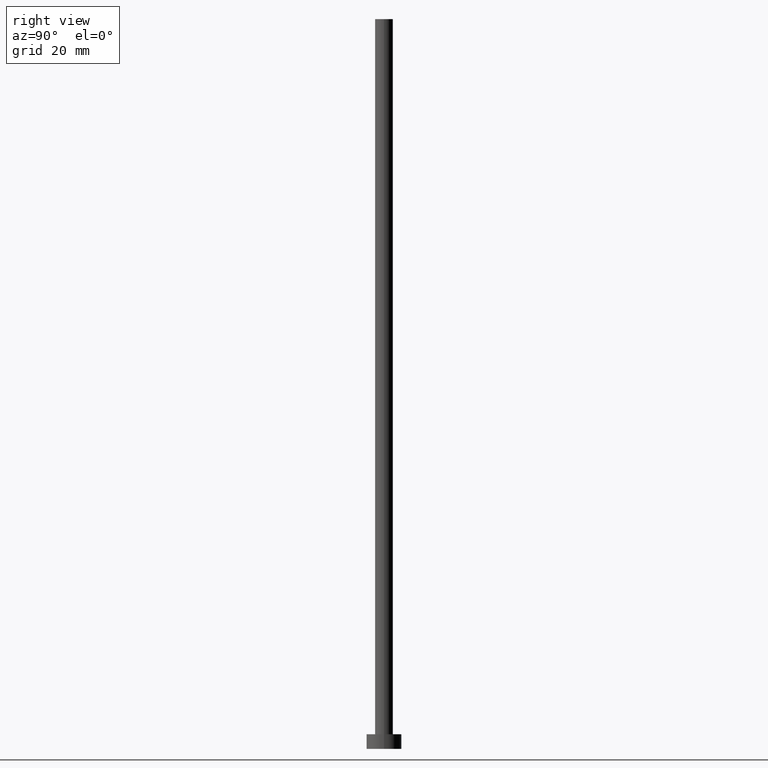
[diagram: clean part render]
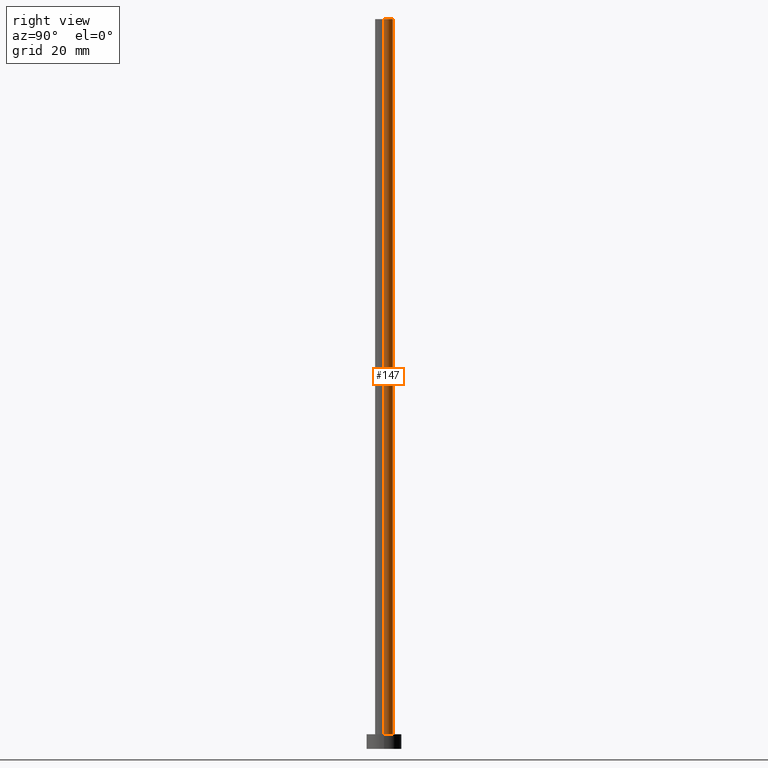
[diagram: same view with one face highlighted and labeled with its STEP entity id]
A machine part, right view. The second image highlights one B-rep face of the part: STEP entity #147.
In plain terms, the highlighted cylindrical surface (edge-blend (fillet) strip) has radius 3.075 mm, axis along (-0, -0, -1).
Its self-contained STEP definition (entity closure, byte-faithful):
#18 = LINE ( 'NONE', #164, #72 ) ;
#20 = EDGE_CURVE ( 'NONE', #160, #21, #189, .T. ) ;
#21 = VERTEX_POINT ( 'NONE', #62 ) ;
#25 = DIRECTION ( 'NONE',  ( 1.000000000000000000, 0.000000000000000000, 0.000000000000000000 ) ) ;
#35 = CARTESIAN_POINT ( 'NONE',  ( 3.075000000000000178, 3.765788907378111032E-16, 5.000000000000000000 ) ) ;
#37 = AXIS2_PLACEMENT_3D ( 'NONE', #149, #55, #51 ) ;
#39 = CIRCLE ( 'NONE', #37, 3.075000000000000178 ) ;
#42 = CARTESIAN_POINT ( 'NONE',  ( 0.000000000000000000, 0.000000000000000000, 5.000000000000000000 ) ) ;
#51 = DIRECTION ( 'NONE',  ( 1.000000000000000000, 0.000000000000000000, 0.000000000000000000 ) ) ;
#52 = EDGE_CURVE ( 'NONE', #121, #160, #101, .T. ) ;
#55 = DIRECTION ( 'NONE',  ( 0.000000000000000000, 0.000000000000000000, 1.000000000000000000 ) ) ;
#62 = CARTESIAN_POINT ( 'NONE',  ( -3.075000000000000178, 0.000000000000000000, 5.000000000000000000 ) ) ;
#66 = ORIENTED_EDGE ( 'NONE', *, *, #52, .T. ) ;
#72 = VECTOR ( 'NONE', #252, 1000.000000000000000 ) ;
#76 = AXIS2_PLACEMENT_3D ( 'NONE', #42, #123, #25 ) ;
#78 = ORIENTED_EDGE ( 'NONE', *, *, #229, .F. ) ;
#101 = LINE ( 'NONE', #103, #223 ) ;
#103 = CARTESIAN_POINT ( 'NONE',  ( 3.075000000000000178, 3.765788907378111032E-16, 250.0000000000000000 ) ) ;
#121 = VERTEX_POINT ( 'NONE', #145 ) ;
#123 = DIRECTION ( 'NONE',  ( 0.000000000000000000, 0.000000000000000000, 1.000000000000000000 ) ) ;
#128 = CARTESIAN_POINT ( 'NONE',  ( 0.000000000000000000, 0.000000000000000000, 250.0000000000000000 ) ) ;
#130 = CYLINDRICAL_SURFACE ( 'NONE', #210, 3.075000000000000178 ) ;
#140 = ORIENTED_EDGE ( 'NONE', *, *, #142, .F. ) ;
#141 = ORIENTED_EDGE ( 'NONE', *, *, #20, .T. ) ;
#142 = EDGE_CURVE ( 'NONE', #121, #195, #39, .T. ) ;
#145 = CARTESIAN_POINT ( 'NONE',  ( 3.075000000000000178, 3.765788907378111032E-16, 250.0000000000000000 ) ) ;
#147 = ADVANCED_FACE ( 'NONE', ( #249 ), #130, .T. ) ;
#149 = CARTESIAN_POINT ( 'NONE',  ( 0.000000000000000000, 0.000000000000000000, 250.0000000000000000 ) ) ;
#154 = EDGE_LOOP ( 'NONE', ( #140, #66, #141, #78 ) ) ;
#160 = VERTEX_POINT ( 'NONE', #35 ) ;
#164 = CARTESIAN_POINT ( 'NONE',  ( -3.075000000000000178, 0.000000000000000000, 250.0000000000000000 ) ) ;
#165 = CARTESIAN_POINT ( 'NONE',  ( -3.075000000000000178, 0.000000000000000000, 250.0000000000000000 ) ) ;
#189 = CIRCLE ( 'NONE', #76, 3.075000000000000178 ) ;
#195 = VERTEX_POINT ( 'NONE', #165 ) ;
#208 = DIRECTION ( 'NONE',  ( -1.000000000000000000, 0.000000000000000000, 0.000000000000000000 ) ) ;
#210 = AXIS2_PLACEMENT_3D ( 'NONE', #128, #232, #208 ) ;
#223 = VECTOR ( 'NONE', #244, 1000.000000000000000 ) ;
#229 = EDGE_CURVE ( 'NONE', #195, #21, #18, .T. ) ;
#232 = DIRECTION ( 'NONE',  ( -0.000000000000000000, -0.000000000000000000, -1.000000000000000000 ) ) ;
#244 = DIRECTION ( 'NONE',  ( -0.000000000000000000, -0.000000000000000000, -1.000000000000000000 ) ) ;
#249 = FACE_OUTER_BOUND ( 'NONE', #154, .T. ) ;
#252 = DIRECTION ( 'NONE',  ( -0.000000000000000000, -0.000000000000000000, -1.000000000000000000 ) ) ;